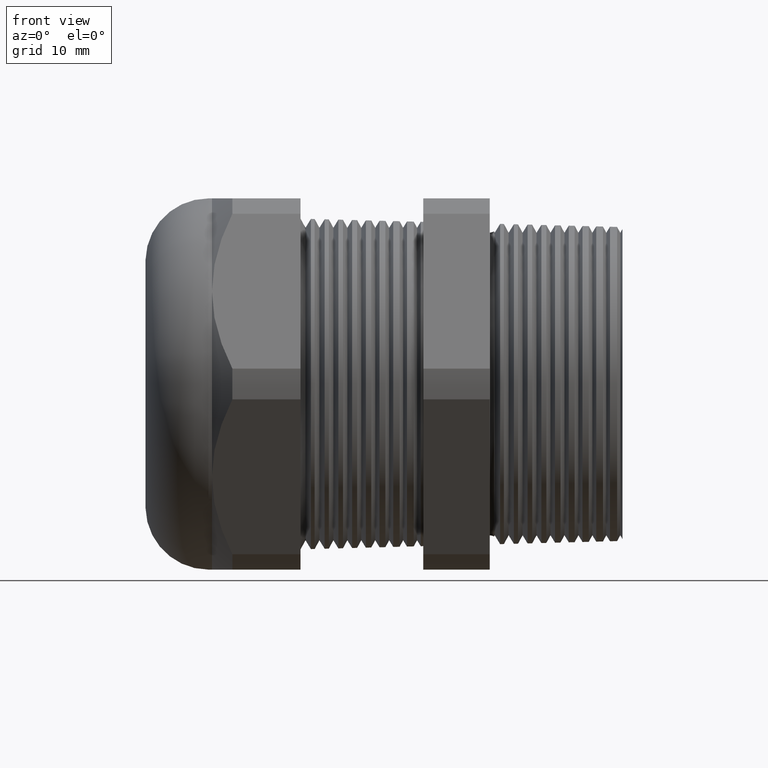
[diagram: clean part render]
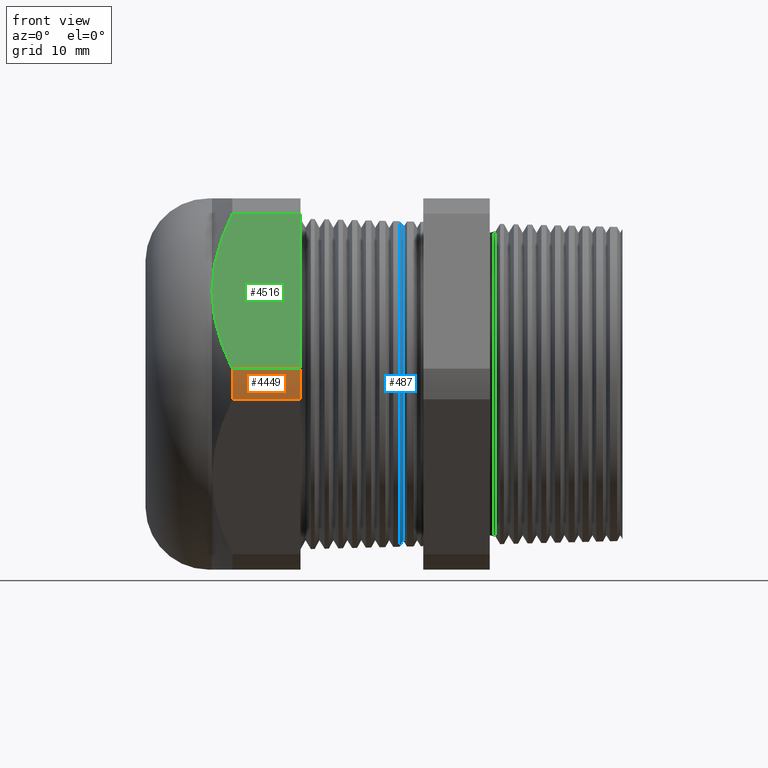
[diagram: same view with three faces highlighted in distinct colors, each labeled with its STEP entity id]
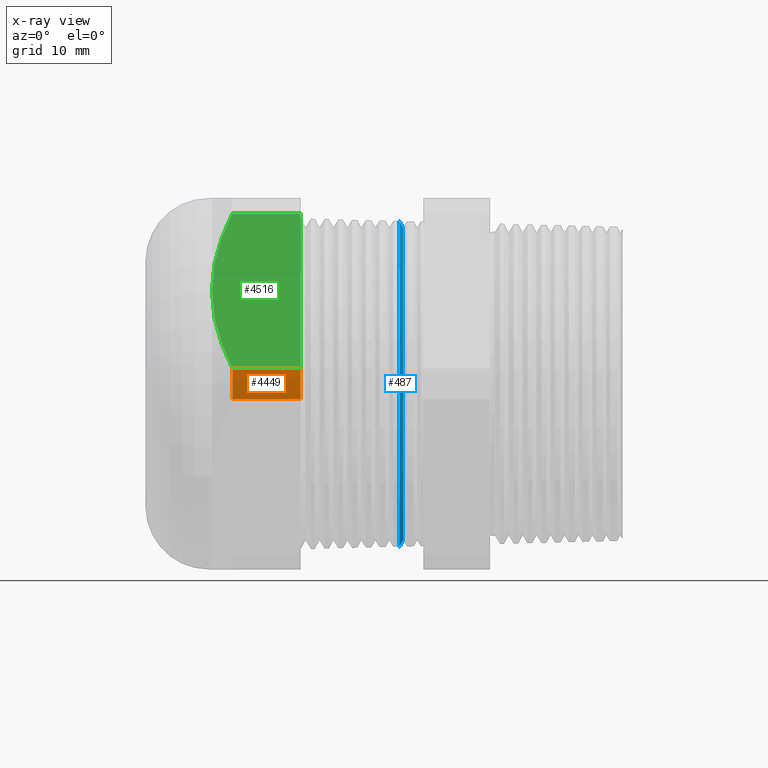
[diagram: x-ray of the same camera — body ghosted, the three highlighted faces saturated]
A machine part, front view with three faces highlighted in distinct colors.
The next image is the same camera in x-ray (body ghosted, the three faces saturated) — at least one of them is partly hidden behind the body in this view.
Their STEP definitions:

[orange] entity #4449 — the highlighted cylindrical surface (partial cylindrical patch) has radius 23.26 mm, axis along (-1, 0, 0).
#3085 = CIRCLE ( 'NONE', #3390, 0.9157500000000000600 ) ;
#3299 = DIRECTION ( 'NONE',  ( -1.000000000000000000, 0.0000000000000000000, 0.0000000000000000000 ) ) ;
#3300 = VECTOR ( 'NONE', #3299, 39.37007874015748100 ) ;
#3301 = CARTESIAN_POINT ( 'NONE',  ( 0.2800000000000000300, -0.9132000843845193800, -0.06829105636982654700 ) ) ;
#3308 = LINE ( 'NONE', #3301, #3300 ) ;
#3309 = CARTESIAN_POINT ( 'NONE',  ( -1.151023622047244100, -0.9132000843845193800, -0.06829105636982654700 ) ) ;
#3310 = CARTESIAN_POINT ( 'NONE',  ( -1.453974409448819200, -0.9132000843845193800, -0.06829105636982654700 ) ) ;
#3371 = CARTESIAN_POINT ( 'NONE',  ( -1.151023622047244100, -0.9132000843845194900, 0.06829105636982570100 ) ) ;
#3376 = CARTESIAN_POINT ( 'NONE',  ( -1.453974409448818700, -0.9132000843845194900, 0.06829105636982589500 ) ) ;
#3387 = DIRECTION ( 'NONE',  ( 0.0000000000000000000, 0.0000000000000000000, -1.000000000000000000 ) ) ;
#3388 = DIRECTION ( 'NONE',  ( 1.000000000000000000, 0.0000000000000000000, 0.0000000000000000000 ) ) ;
#3389 = CARTESIAN_POINT ( 'NONE',  ( -1.453974409448819200, 0.0000000000000000000, 0.0000000000000000000 ) ) ;
#3390 = AXIS2_PLACEMENT_3D ( 'NONE', #3389, #3388, #3387 ) ;
#3397 = DIRECTION ( 'NONE',  ( -1.000000000000000000, 0.0000000000000000000, 0.0000000000000000000 ) ) ;
#3398 = VECTOR ( 'NONE', #3397, 39.37007874015748100 ) ;
#3399 = CARTESIAN_POINT ( 'NONE',  ( 0.2800000000000000300, -0.9132000843845194900, 0.06829105636982570100 ) ) ;
#3400 = LINE ( 'NONE', #3399, #3398 ) ;
#3419 = CYLINDRICAL_SURFACE ( 'NONE', #3421, 0.9157500000000000600 ) ;
#3420 = FACE_OUTER_BOUND ( 'NONE', #4443, .T. ) ;
#3421 = AXIS2_PLACEMENT_3D ( 'NONE', #3483, #3482, #3481 ) ;
#3481 = DIRECTION ( 'NONE',  ( 0.0000000000000000000, 0.0000000000000000000, 1.000000000000000000 ) ) ;
#3482 = DIRECTION ( 'NONE',  ( -1.000000000000000000, 0.0000000000000000000, 0.0000000000000000000 ) ) ;
#3483 = CARTESIAN_POINT ( 'NONE',  ( 0.2800000000000000300, 0.0000000000000000000, 0.0000000000000000000 ) ) ;
#3598 = DIRECTION ( 'NONE',  ( 0.0000000000000000000, 0.0000000000000000000, -1.000000000000000000 ) ) ;
#3599 = DIRECTION ( 'NONE',  ( 1.000000000000000000, 0.0000000000000000000, 0.0000000000000000000 ) ) ;
#3600 = CARTESIAN_POINT ( 'NONE',  ( -1.151023622047244100, 0.0000000000000000000, 0.0000000000000000000 ) ) ;
#3601 = AXIS2_PLACEMENT_3D ( 'NONE', #3600, #3599, #3598 ) ;
#3602 = CIRCLE ( 'NONE', #3601, 0.9157500000000000600 ) ;
#4387 = VERTEX_POINT ( 'NONE', #3310 ) ;
#4388 = VERTEX_POINT ( 'NONE', #3309 ) ;
#4389 = EDGE_CURVE ( 'NONE', #4388, #4387, #3308, .T. ) ;
#4405 = ORIENTED_EDGE ( 'NONE', *, *, #4518, .F. ) ;
#4406 = ORIENTED_EDGE ( 'NONE', *, *, #4389, .F. ) ;
#4407 = EDGE_CURVE ( 'NONE', #4414, #4387, #3085, .T. ) ;
#4413 = ORIENTED_EDGE ( 'NONE', *, *, #4407, .T. ) ;
#4414 = VERTEX_POINT ( 'NONE', #3376 ) ;
#4419 = VERTEX_POINT ( 'NONE', #3371 ) ;
#4434 = EDGE_CURVE ( 'NONE', #4419, #4414, #3400, .T. ) ;
#4439 = ORIENTED_EDGE ( 'NONE', *, *, #4434, .T. ) ;
#4443 = EDGE_LOOP ( 'NONE', ( #4439, #4413, #4406, #4405 ) ) ;
#4449 = ADVANCED_FACE ( 'NONE', ( #3420 ), #3419, .T. ) ;
#4518 = EDGE_CURVE ( 'NONE', #4419, #4388, #3602, .T. ) ;

[blue] entity #487 — the highlighted conical surface has half-angle 61.5 deg.
#487 = ADVANCED_FACE ( 'NONE', ( #1794 ), #1792, .T. ) ;
#488 = ORIENTED_EDGE ( 'NONE', *, *, #4422, .F. ) ;
#489 = ORIENTED_EDGE ( 'NONE', *, *, #490, .F. ) ;
#490 = EDGE_CURVE ( 'NONE', #3924, #3941, #1787, .T. ) ;
#491 = ORIENTED_EDGE ( 'NONE', *, *, #3991, .T. ) ;
#492 = ORIENTED_EDGE ( 'NONE', *, *, #506, .T. ) ;
#506 = EDGE_CURVE ( 'NONE', #3985, #3980, #1834, .T. ) ;
#509 = EDGE_LOOP ( 'NONE', ( #488, #489, #491, #492 ) ) ;
#1784 = DIRECTION ( 'NONE',  ( 0.0000000000000000000, 0.0000000000000000000, -1.000000000000000000 ) ) ;
#1785 = DIRECTION ( 'NONE',  ( 1.000000000000000000, 0.0000000000000000000, 0.0000000000000000000 ) ) ;
#1786 = AXIS2_PLACEMENT_3D ( 'NONE', #1793, #1785, #1784 ) ;
#1787 = CIRCLE ( 'NONE', #1786, 0.6944091762748932900 ) ;
#1788 = DIRECTION ( 'NONE',  ( 0.0000000000000000000, 0.0000000000000000000, 1.000000000000000000 ) ) ;
#1789 = DIRECTION ( 'NONE',  ( -1.000000000000000000, 0.0000000000000000000, 0.0000000000000000000 ) ) ;
#1790 = CARTESIAN_POINT ( 'NONE',  ( -0.7170236220472440100, 0.0000000000000000000, 0.0000000000000000000 ) ) ;
#1791 = AXIS2_PLACEMENT_3D ( 'NONE', #1790, #1789, #1788 ) ;
#1792 = CONICAL_SURFACE ( 'NONE', #1791, 0.7349999999999999900, 1.073377489976498700 ) ;
#1793 = CARTESIAN_POINT ( 'NONE',  ( -0.6949846029526775000, 0.0000000000000000000, 0.0000000000000000000 ) ) ;
#1794 = FACE_OUTER_BOUND ( 'NONE', #509, .T. ) ;
#1826 = DIRECTION ( 'NONE',  ( 0.0000000000000000000, 0.0000000000000000000, 1.000000000000000000 ) ) ;
#1827 = DIRECTION ( 'NONE',  ( 1.000000000000000000, 0.0000000000000000000, 0.0000000000000000000 ) ) ;
#1828 = CARTESIAN_POINT ( 'NONE',  ( -0.7107641022872431800, 0.0000000000000000000, 0.0000000000000000000 ) ) ;
#1829 = AXIS2_PLACEMENT_3D ( 'NONE', #1828, #1827, #1826 ) ;
#1834 = CIRCLE ( 'NONE', #1829, 0.7234713987454799400 ) ;
#2445 = CARTESIAN_POINT ( 'NONE',  ( -0.6949846029526775000, 0.0000000000000000000, 0.6944091762748932900 ) ) ;
#2477 = CARTESIAN_POINT ( 'NONE',  ( -0.6949846029526775000, 8.682014538859544300E-017, -0.6944091762748932900 ) ) ;
#2582 = CARTESIAN_POINT ( 'NONE',  ( -0.7107641022872431800, 0.0000000000000000000, 0.7234713987454799400 ) ) ;
#2584 = CARTESIAN_POINT ( 'NONE',  ( -0.7107641022872431800, 8.864452895951521400E-017, -0.7234713987454799400 ) ) ;
#2632 = DIRECTION ( 'NONE',  ( -0.4771587602596206200, 0.0000000000000000000, 0.8788171126619586100 ) ) ;
#2633 = VECTOR ( 'NONE', #2632, 39.37007874015748900 ) ;
#2634 = CARTESIAN_POINT ( 'NONE',  ( -0.7170236220472440100, 0.0000000000000000000, 0.7349999999999999900 ) ) ;
#2635 = LINE ( 'NONE', #2634, #2633 ) ;
#3411 = DIRECTION ( 'NONE',  ( -0.4771587602596206200, 1.076240564057386400E-016, -0.8788171126619586100 ) ) ;
#3412 = VECTOR ( 'NONE', #3411, 39.37007874015748900 ) ;
#3413 = CARTESIAN_POINT ( 'NONE',  ( -0.7170236220472440100, 9.001153973733045900E-017, -0.7349999999999999900 ) ) ;
#3414 = LINE ( 'NONE', #3413, #3412 ) ;
#3924 = VERTEX_POINT ( 'NONE', #2445 ) ;
#3941 = VERTEX_POINT ( 'NONE', #2477 ) ;
#3980 = VERTEX_POINT ( 'NONE', #2584 ) ;
#3985 = VERTEX_POINT ( 'NONE', #2582 ) ;
#3991 = EDGE_CURVE ( 'NONE', #3924, #3985, #2635, .T. ) ;
#4422 = EDGE_CURVE ( 'NONE', #3941, #3980, #3414, .T. ) ;

[green] entity #4516 — the highlighted planar face has unit normal (0, -0.866, 0.5).
#3371 = CARTESIAN_POINT ( 'NONE',  ( -1.151023622047244100, -0.9132000843845194900, 0.06829105636982570100 ) ) ;
#3376 = CARTESIAN_POINT ( 'NONE',  ( -1.453974409448818700, -0.9132000843845194900, 0.06829105636982589500 ) ) ;
#3397 = DIRECTION ( 'NONE',  ( -1.000000000000000000, 0.0000000000000000000, 0.0000000000000000000 ) ) ;
#3398 = VECTOR ( 'NONE', #3397, 39.37007874015748100 ) ;
#3399 = CARTESIAN_POINT ( 'NONE',  ( 0.2800000000000000300, -0.9132000843845194900, 0.06829105636982570100 ) ) ;
#3400 = LINE ( 'NONE', #3399, #3398 ) ;
#3500 = CARTESIAN_POINT ( 'NONE',  ( -1.453974409448818700, -0.9132000843845194900, 0.06829105636982589500 ) ) ;
#3501 = CARTESIAN_POINT ( 'NONE',  ( -1.481451138322201100, -0.8815466788935424300, 0.1231163629127782300 ) ) ;
#3502 = CARTESIAN_POINT ( 'NONE',  ( -1.504454367446969700, -0.8488306607340111400, 0.1797821685864319800 ) ) ;
#3503 = CARTESIAN_POINT ( 'NONE',  ( -1.536043178441334400, -0.7825559566388159400, 0.2945733233359038600 ) ) ;
#3504 = CARTESIAN_POINT ( 'NONE',  ( -1.544724409448818400, -0.7488564788623134300, 0.3529425310333434400 ) ) ;
#3505 = CARTESIAN_POINT ( 'NONE',  ( -1.544724409448818800, -0.7144709581221622100, 0.4124999999999999200 ) ) ;
#3506 = CARTESIAN_POINT ( 'NONE',  ( -1.453974409448819200, -0.5157418318598047100, 0.7567089436301734900 ) ) ;
#3507 = CARTESIAN_POINT ( 'NONE',  ( -1.544724409448818800, -0.7144709581221622100, 0.4124999999999999200 ) ) ;
#3508 = B_SPLINE_CURVE_WITH_KNOTS ( 'NONE', 3,
 ( #3505, #3504, #3503, #3502, #3501, #3500 ),
 .UNSPECIFIED., .F., .F.,
 ( 4, 2, 4 ),
 ( 0.01036164945538863900, 0.01553879763505034200, 0.02071594581471204700 ),
 .UNSPECIFIED. ) ;
#3510 = DIRECTION ( 'NONE',  ( 0.0000000000000000000, -0.4999999999999998300, -0.8660254037844388200 ) ) ;
#3511 = VECTOR ( 'NONE', #3510, 39.37007874015748100 ) ;
#3512 = CARTESIAN_POINT ( 'NONE',  ( -1.151023622047244100, -0.5307209581221621300, 0.7307643358907810500 ) ) ;
#3513 = LINE ( 'NONE', #3512, #3511 ) ;
#3518 = CARTESIAN_POINT ( 'NONE',  ( -1.151023622047244100, -0.5157418318598047100, 0.7567089436301734900 ) ) ;
#3528 = CARTESIAN_POINT ( 'NONE',  ( -1.544724409448818800, -0.7144709581221622100, 0.4124999999999999200 ) ) ;
#3529 = CARTESIAN_POINT ( 'NONE',  ( -1.544724409448818800, -0.7058686793890305300, 0.4273995838266527700 ) ) ;
#3530 = CARTESIAN_POINT ( 'NONE',  ( -1.544180023244014800, -0.6971877207736741900, 0.4424354452068529100 ) ) ;
#3531 = CARTESIAN_POINT ( 'NONE',  ( -1.542017830737548700, -0.6799402181191401800, 0.4723089961081851100 ) ) ;
#3532 = CARTESIAN_POINT ( 'NONE',  ( -1.540407094865047500, -0.6713824640496751700, 0.4871314609551776800 ) ) ;
#3533 = CARTESIAN_POINT ( 'NONE',  ( -1.534081869582212700, -0.6458952435726335000, 0.5312766217651238000 ) ) ;
#3534 = CARTESIAN_POINT ( 'NONE',  ( -1.527873897119453900, -0.6291518768872981200, 0.5602769835538802300 ) ) ;
#3535 = CARTESIAN_POINT ( 'NONE',  ( -1.504100495182841200, -0.5795634430641815000, 0.6461666704032857900 ) ) ;
#3537 = CARTESIAN_POINT ( 'NONE',  ( -1.481417170283923800, -0.5473561059063408700, 0.7019514147371662700 ) ) ;
#3538 = CARTESIAN_POINT ( 'NONE',  ( -1.453974409448819200, -0.5157418318598047100, 0.7567089436301734900 ) ) ;
#3540 = B_SPLINE_CURVE_WITH_KNOTS ( 'NONE', 3,
 ( #3538, #3537, #3535, #3534, #3533, #3532, #3531, #3530, #3529, #3528 ),
 .UNSPECIFIED., .F., .F.,
 ( 4, 2, 2, 2, 4 ),
 ( 2.483247851884477100E-007, 0.005180948890086913400, 0.007771299172737776900, 0.009066474314063207400, 0.01036164945538863900 ),
 .UNSPECIFIED. ) ;
#3546 = FACE_OUTER_BOUND ( 'NONE', #4510, .T. ) ;
#3552 = DIRECTION ( 'NONE',  ( -1.000000000000000000, 0.0000000000000000000, 0.0000000000000000000 ) ) ;
#3553 = VECTOR ( 'NONE', #3552, 39.37007874015748100 ) ;
#3554 = CARTESIAN_POINT ( 'NONE',  ( 0.2800000000000000300, -0.5157418318598047100, 0.7567089436301734900 ) ) ;
#3555 = LINE ( 'NONE', #3554, #3553 ) ;
#3605 = DIRECTION ( 'NONE',  ( 0.0000000000000000000, -0.4999999999999998300, -0.8660254037844388200 ) ) ;
#3606 = DIRECTION ( 'NONE',  ( 0.0000000000000000000, -0.8660254037844388200, 0.4999999999999998300 ) ) ;
#3607 = CARTESIAN_POINT ( 'NONE',  ( 0.2800000000000000300, -0.9132000843845193800, 0.06829105636982620000 ) ) ;
#3608 = AXIS2_PLACEMENT_3D ( 'NONE', #3607, #3606, #3605 ) ;
#3609 = PLANE ( 'NONE',  #3608 ) ;
#4414 = VERTEX_POINT ( 'NONE', #3376 ) ;
#4419 = VERTEX_POINT ( 'NONE', #3371 ) ;
#4434 = EDGE_CURVE ( 'NONE', #4419, #4414, #3400, .T. ) ;
#4456 = ORIENTED_EDGE ( 'NONE', *, *, #4469, .F. ) ;
#4469 = EDGE_CURVE ( 'NONE', #4495, #4419, #3513, .T. ) ;
#4473 = ORIENTED_EDGE ( 'NONE', *, *, #4434, .F. ) ;
#4474 = EDGE_CURVE ( 'NONE', #4476, #4414, #3508, .T. ) ;
#4475 = VERTEX_POINT ( 'NONE', #3506 ) ;
#4476 = VERTEX_POINT ( 'NONE', #3507 ) ;
#4479 = ORIENTED_EDGE ( 'NONE', *, *, #4474, .T. ) ;
#4486 = ORIENTED_EDGE ( 'NONE', *, *, #4488, .T. ) ;
#4488 = EDGE_CURVE ( 'NONE', #4475, #4476, #3540, .T. ) ;
#4495 = VERTEX_POINT ( 'NONE', #3518 ) ;
#4508 = EDGE_CURVE ( 'NONE', #4495, #4475, #3555, .T. ) ;
#4509 = ORIENTED_EDGE ( 'NONE', *, *, #4508, .T. ) ;
#4510 = EDGE_LOOP ( 'NONE', ( #4509, #4486, #4479, #4473, #4456 ) ) ;
#4516 = ADVANCED_FACE ( 'NONE', ( #3546 ), #3609, .T. ) ;